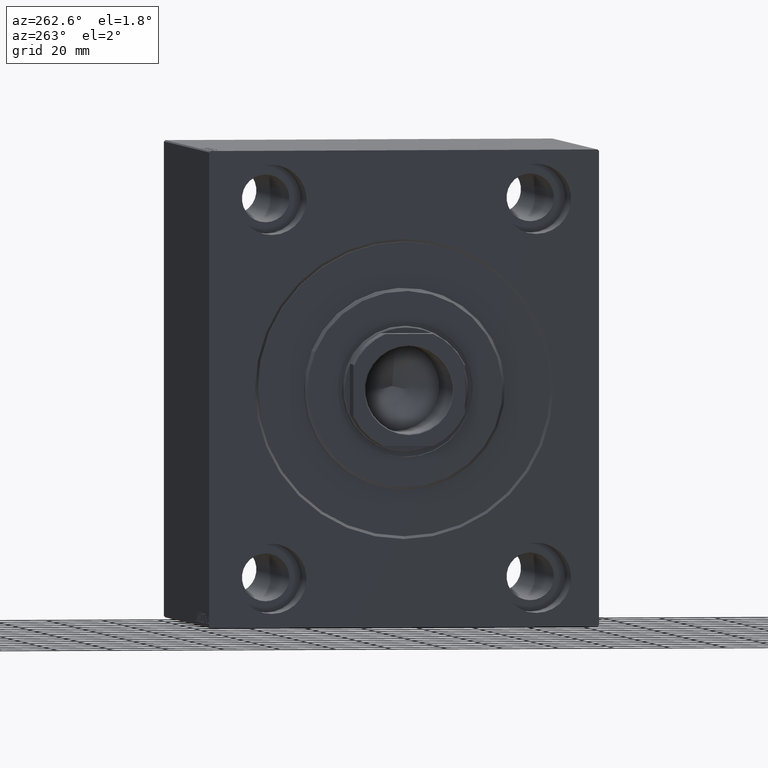
[diagram: clean part render]
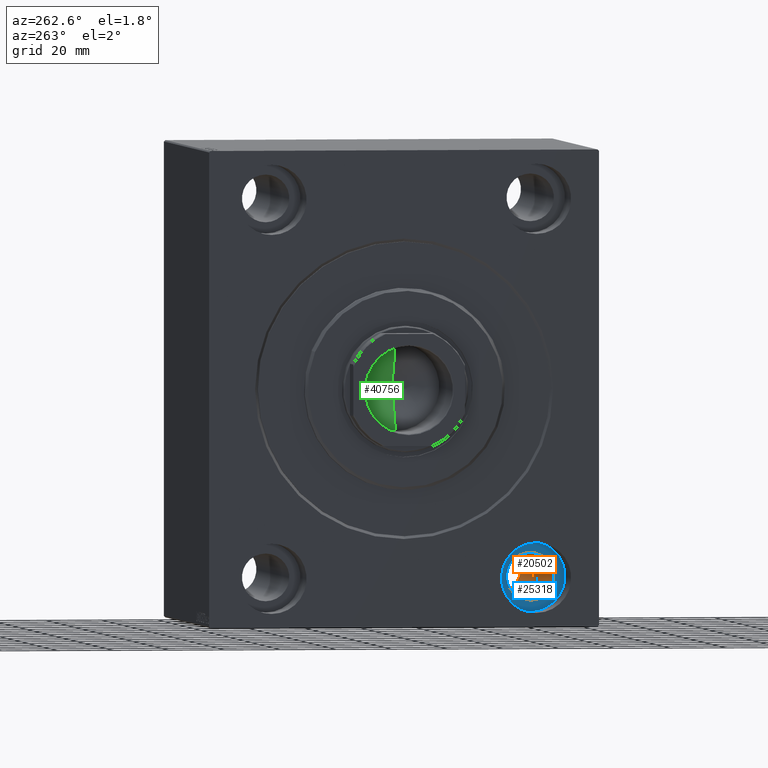
[diagram: same view with three faces highlighted in distinct colors, each labeled with its STEP entity id]
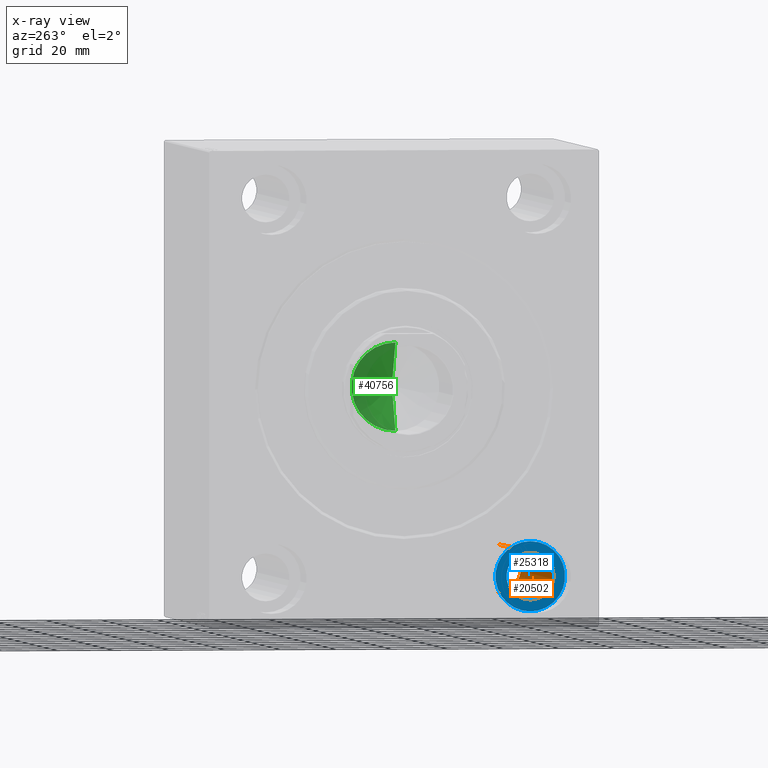
[diagram: x-ray of the same camera — body ghosted, the three highlighted faces saturated]
A machine part, auxiliary view with three faces highlighted in distinct colors.
The next image is the same camera in x-ray (body ghosted, the three faces saturated) — at least one of them is partly hidden behind the body in this view.
Their STEP definitions:

[orange] entity #20502 — the highlighted cylindrical surface (edge-blend (fillet) strip) has radius 8.5 mm, axis along (-1, -0, -0).
#7137 = EDGE_CURVE ( 'NONE', #32705, #14923, #38984, .T. ) ;
#7543 = ORIENTED_EDGE ( 'NONE', *, *, #7137, .T. ) ;
#9465 = VERTEX_POINT ( 'NONE', #12226 ) ;
#9971 = DIRECTION ( 'NONE',  ( -1.000000000000000000, 0.000000000000000000, 0.000000000000000000 ) ) ;
#9985 = DIRECTION ( 'NONE',  ( -1.000000000000000000, -0.000000000000000000, -0.000000000000000000 ) ) ;
#10196 = CYLINDRICAL_SURFACE ( 'NONE', #18598, 8.499999999999992895 ) ;
#12226 = CARTESIAN_POINT ( 'NONE',  ( 108.0000000000000000, -47.49999999999999289, -59.00000000000001421 ) ) ;
#12278 = VECTOR ( 'NONE', #34704, 1000.000000000000000 ) ;
#12632 = LINE ( 'NONE', #36236, #12870 ) ;
#12862 = DIRECTION ( 'NONE',  ( 0.000000000000000000, 0.000000000000000000, 1.000000000000000000 ) ) ;
#12870 = VECTOR ( 'NONE', #26877, 1000.000000000000000 ) ;
#13013 = CARTESIAN_POINT ( 'NONE',  ( 17.00000000000000000, -47.49999999999999289, -76.00000000000000000 ) ) ;
#14923 = VERTEX_POINT ( 'NONE', #24456 ) ;
#15236 = CARTESIAN_POINT ( 'NONE',  ( 125.0000000000000000, -47.49999999999999289, -59.00000000000001421 ) ) ;
#16944 = AXIS2_PLACEMENT_3D ( 'NONE', #36467, #9971, #43588 ) ;
#18598 = AXIS2_PLACEMENT_3D ( 'NONE', #43368, #26882, #12862 ) ;
#18828 = AXIS2_PLACEMENT_3D ( 'NONE', #40481, #9985, #33361 ) ;
#20502 = ADVANCED_FACE ( 'NONE', ( #29772 ), #10196, .F. ) ;
#23099 = ORIENTED_EDGE ( 'NONE', *, *, #35570, .F. ) ;
#24150 = CARTESIAN_POINT ( 'NONE',  ( 108.0000000000000000, -47.49999999999999289, -76.00000000000000000 ) ) ;
#24456 = CARTESIAN_POINT ( 'NONE',  ( 17.00000000000000000, -47.49999999999999289, -59.00000000000001421 ) ) ;
#26395 = EDGE_CURVE ( 'NONE', #37158, #32705, #12632, .T. ) ;
#26877 = DIRECTION ( 'NONE',  ( -1.000000000000000000, -0.000000000000000000, -0.000000000000000000 ) ) ;
#26882 = DIRECTION ( 'NONE',  ( -1.000000000000000000, -0.000000000000000000, -0.000000000000000000 ) ) ;
#26923 = ORIENTED_EDGE ( 'NONE', *, *, #26395, .T. ) ;
#29772 = FACE_OUTER_BOUND ( 'NONE', #30938, .T. ) ;
#30938 = EDGE_LOOP ( 'NONE', ( #42343, #26923, #7543, #23099 ) ) ;
#32705 = VERTEX_POINT ( 'NONE', #13013 ) ;
#33361 = DIRECTION ( 'NONE',  ( 0.000000000000000000, 0.000000000000000000, -1.000000000000000000 ) ) ;
#34704 = DIRECTION ( 'NONE',  ( -1.000000000000000000, -0.000000000000000000, -0.000000000000000000 ) ) ;
#34922 = LINE ( 'NONE', #15236, #12278 ) ;
#35570 = EDGE_CURVE ( 'NONE', #9465, #14923, #34922, .T. ) ;
#36236 = CARTESIAN_POINT ( 'NONE',  ( 125.0000000000000000, -47.49999999999999289, -76.00000000000000000 ) ) ;
#36467 = CARTESIAN_POINT ( 'NONE',  ( 17.00000000000000000, -47.49999999999999289, -67.50000000000000000 ) ) ;
#37158 = VERTEX_POINT ( 'NONE', #24150 ) ;
#38984 = CIRCLE ( 'NONE', #16944, 8.499999999999992895 ) ;
#40481 = CARTESIAN_POINT ( 'NONE',  ( 108.0000000000000000, -47.49999999999999289, -67.50000000000000000 ) ) ;
#42212 = EDGE_CURVE ( 'NONE', #37158, #9465, #42304, .T. ) ;
#42304 = CIRCLE ( 'NONE', #18828, 8.499999999999992895 ) ;
#42343 = ORIENTED_EDGE ( 'NONE', *, *, #42212, .F. ) ;
#43368 = CARTESIAN_POINT ( 'NONE',  ( 125.0000000000000000, -47.49999999999999289, -67.50000000000000000 ) ) ;
#43588 = DIRECTION ( 'NONE',  ( 0.000000000000000000, 0.000000000000000000, 1.000000000000000000 ) ) ;

[blue] entity #25318 — the highlighted planar face has unit normal (-1, 0, 0).
#1490 = EDGE_CURVE ( 'NONE', #14923, #32705, #23962, .T. ) ;
#1571 = DIRECTION ( 'NONE',  ( -1.000000000000000000, 0.000000000000000000, 0.000000000000000000 ) ) ;
#4894 = DIRECTION ( 'NONE',  ( -1.000000000000000000, 0.000000000000000000, 0.000000000000000000 ) ) ;
#6453 = ORIENTED_EDGE ( 'NONE', *, *, #1490, .F. ) ;
#6896 = ORIENTED_EDGE ( 'NONE', *, *, #12300, .T. ) ;
#7137 = EDGE_CURVE ( 'NONE', #32705, #14923, #38984, .T. ) ;
#7346 = DIRECTION ( 'NONE',  ( 0.000000000000000000, 0.000000000000000000, 1.000000000000000000 ) ) ;
#9727 = AXIS2_PLACEMENT_3D ( 'NONE', #11578, #4894, #21159 ) ;
#9971 = DIRECTION ( 'NONE',  ( -1.000000000000000000, 0.000000000000000000, 0.000000000000000000 ) ) ;
#11263 = EDGE_CURVE ( 'NONE', #43619, #12616, #11954, .T. ) ;
#11578 = CARTESIAN_POINT ( 'NONE',  ( 17.00000000000000000, -47.49999999999999289, -67.50000000000000000 ) ) ;
#11954 = CIRCLE ( 'NONE', #14092, 12.49999999999999645 ) ;
#12300 = EDGE_CURVE ( 'NONE', #12616, #43619, #26234, .T. ) ;
#12616 = VERTEX_POINT ( 'NONE', #18009 ) ;
#13013 = CARTESIAN_POINT ( 'NONE',  ( 17.00000000000000000, -47.49999999999999289, -76.00000000000000000 ) ) ;
#13841 = DIRECTION ( 'NONE',  ( -1.000000000000000000, 0.000000000000000000, 0.000000000000000000 ) ) ;
#14092 = AXIS2_PLACEMENT_3D ( 'NONE', #40517, #37175, #7346 ) ;
#14497 = CARTESIAN_POINT ( 'NONE',  ( 17.00000000000000000, -47.49999999999999289, -67.50000000000000000 ) ) ;
#14923 = VERTEX_POINT ( 'NONE', #24456 ) ;
#16944 = AXIS2_PLACEMENT_3D ( 'NONE', #36467, #9971, #43588 ) ;
#17110 = ORIENTED_EDGE ( 'NONE', *, *, #7137, .F. ) ;
#18009 = CARTESIAN_POINT ( 'NONE',  ( 17.00000000000000000, -47.49999999999999289, -80.00000000000000000 ) ) ;
#21159 = DIRECTION ( 'NONE',  ( 0.000000000000000000, 0.000000000000000000, 1.000000000000000000 ) ) ;
#21947 = AXIS2_PLACEMENT_3D ( 'NONE', #14497, #13841, #27430 ) ;
#23962 = CIRCLE ( 'NONE', #9727, 8.499999999999992895 ) ;
#24456 = CARTESIAN_POINT ( 'NONE',  ( 17.00000000000000000, -47.49999999999999289, -59.00000000000001421 ) ) ;
#25318 = ADVANCED_FACE ( 'NONE', ( #29368, #25823 ), #39401, .T. ) ;
#25823 = FACE_OUTER_BOUND ( 'NONE', #37141, .T. ) ;
#26234 = CIRCLE ( 'NONE', #21947, 12.49999999999999645 ) ;
#27041 = AXIS2_PLACEMENT_3D ( 'NONE', #28937, #1571, #42535 ) ;
#27430 = DIRECTION ( 'NONE',  ( 0.000000000000000000, 0.000000000000000000, 1.000000000000000000 ) ) ;
#28937 = CARTESIAN_POINT ( 'NONE',  ( 17.00000000000000000, 0.000000000000000000, 0.000000000000000000 ) ) ;
#29368 = FACE_BOUND ( 'NONE', #36364, .T. ) ;
#32705 = VERTEX_POINT ( 'NONE', #13013 ) ;
#36364 = EDGE_LOOP ( 'NONE', ( #6453, #17110 ) ) ;
#36375 = CARTESIAN_POINT ( 'NONE',  ( 17.00000000000000000, -47.49999999999999289, -55.00000000000000711 ) ) ;
#36467 = CARTESIAN_POINT ( 'NONE',  ( 17.00000000000000000, -47.49999999999999289, -67.50000000000000000 ) ) ;
#37141 = EDGE_LOOP ( 'NONE', ( #41332, #6896 ) ) ;
#37175 = DIRECTION ( 'NONE',  ( -1.000000000000000000, 0.000000000000000000, 0.000000000000000000 ) ) ;
#38984 = CIRCLE ( 'NONE', #16944, 8.499999999999992895 ) ;
#39401 = PLANE ( 'NONE',  #27041 ) ;
#40517 = CARTESIAN_POINT ( 'NONE',  ( 17.00000000000000000, -47.49999999999999289, -67.50000000000000000 ) ) ;
#41332 = ORIENTED_EDGE ( 'NONE', *, *, #11263, .T. ) ;
#42535 = DIRECTION ( 'NONE',  ( 0.000000000000000000, 0.000000000000000000, 1.000000000000000000 ) ) ;
#43588 = DIRECTION ( 'NONE',  ( 0.000000000000000000, 0.000000000000000000, 1.000000000000000000 ) ) ;
#43619 = VERTEX_POINT ( 'NONE', #36375 ) ;

[green] entity #40756 — the highlighted conical surface has half-angle 59 deg.
#2489 = VERTEX_POINT ( 'NONE', #24891 ) ;
#4161 = CARTESIAN_POINT ( 'NONE',  ( -15.74999999999999289, 1.928818708657080556E-15, 26.99999999999998934 ) ) ;
#4992 = DIRECTION ( 'NONE',  ( -0.000000000000000000, -0.000000000000000000, 1.000000000000000000 ) ) ;
#9165 = VECTOR ( 'NONE', #34002, 1000.000000000000000 ) ;
#9236 = ORIENTED_EDGE ( 'NONE', *, *, #29734, .T. ) ;
#12533 = CARTESIAN_POINT ( 'NONE',  ( 0.000000000000000000, 0.000000000000000000, 26.99999999999998934 ) ) ;
#12799 = EDGE_CURVE ( 'NONE', #42290, #30688, #23769, .T. ) ;
#14998 = FACE_OUTER_BOUND ( 'NONE', #36290, .T. ) ;
#16649 = AXIS2_PLACEMENT_3D ( 'NONE', #12533, #4992, #28798 ) ;
#21385 = AXIS2_PLACEMENT_3D ( 'NONE', #43340, #36213, #22200 ) ;
#22200 = DIRECTION ( 'NONE',  ( 1.000000000000000000, 0.000000000000000000, 0.000000000000000000 ) ) ;
#23769 = LINE ( 'NONE', #4161, #9165 ) ;
#24028 = ORIENTED_EDGE ( 'NONE', *, *, #12799, .F. ) ;
#24891 = CARTESIAN_POINT ( 'NONE',  ( 15.74999999999999289, 0.000000000000000000, 26.99999999999998934 ) ) ;
#25046 = DIRECTION ( 'NONE',  ( 0.8571673007021118895, 0.000000000000000000, 0.5150380749100549327 ) ) ;
#27141 = ORIENTED_EDGE ( 'NONE', *, *, #27752, .T. ) ;
#27752 = EDGE_CURVE ( 'NONE', #42290, #2489, #28803, .T. ) ;
#28798 = DIRECTION ( 'NONE',  ( 1.000000000000000000, 0.000000000000000000, 0.000000000000000000 ) ) ;
#28803 = LINE ( 'NONE', #38400, #32830 ) ;
#29734 = EDGE_CURVE ( 'NONE', #2489, #30688, #32752, .T. ) ;
#30688 = VERTEX_POINT ( 'NONE', #32387 ) ;
#32387 = CARTESIAN_POINT ( 'NONE',  ( -15.74999999999999289, 1.928818708657080556E-15, 26.99999999999998934 ) ) ;
#32752 = CIRCLE ( 'NONE', #21385, 15.74999999999999289 ) ;
#32830 = VECTOR ( 'NONE', #25046, 1000.000000000000000 ) ;
#34002 = DIRECTION ( 'NONE',  ( -0.8571673007021118895, 1.049727191138618079E-16, 0.5150380749100549327 ) ) ;
#34464 = CARTESIAN_POINT ( 'NONE',  ( -1.199718644317817648E-14, 0.000000000000000000, 17.53644525031590362 ) ) ;
#35860 = CONICAL_SURFACE ( 'NONE', #16649, 15.74999999999999289, 1.029744258676653645 ) ;
#36213 = DIRECTION ( 'NONE',  ( -0.000000000000000000, -0.000000000000000000, 1.000000000000000000 ) ) ;
#36290 = EDGE_LOOP ( 'NONE', ( #24028, #27141, #9236 ) ) ;
#38400 = CARTESIAN_POINT ( 'NONE',  ( 15.74999999999999289, 0.000000000000000000, 26.99999999999998934 ) ) ;
#40756 = ADVANCED_FACE ( 'NONE', ( #14998 ), #35860, .F. ) ;
#42290 = VERTEX_POINT ( 'NONE', #34464 ) ;
#43340 = CARTESIAN_POINT ( 'NONE',  ( 0.000000000000000000, 0.000000000000000000, 26.99999999999998934 ) ) ;